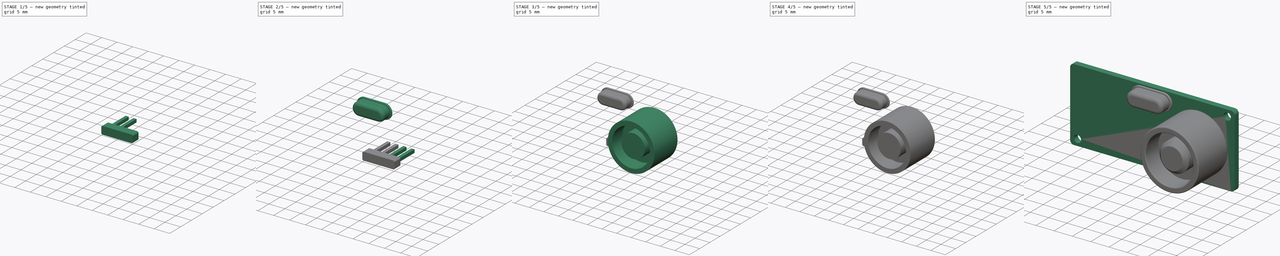
[diagram: build sequence overview — one tinted view per stage of 5, left to right]
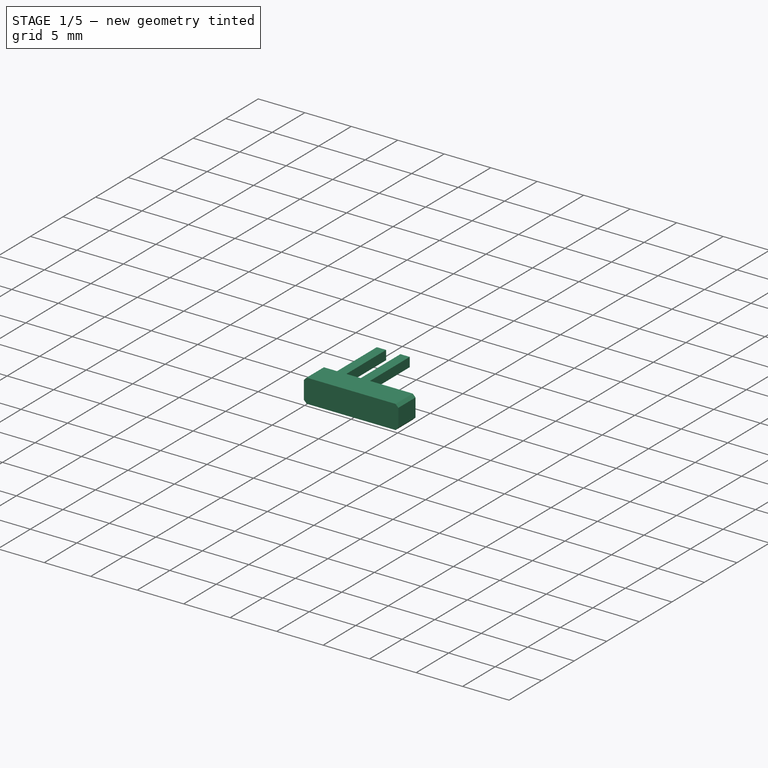
[diagram: stage 1 of 5 — iso view after this stage's code; geometry added in this stage tinted green]
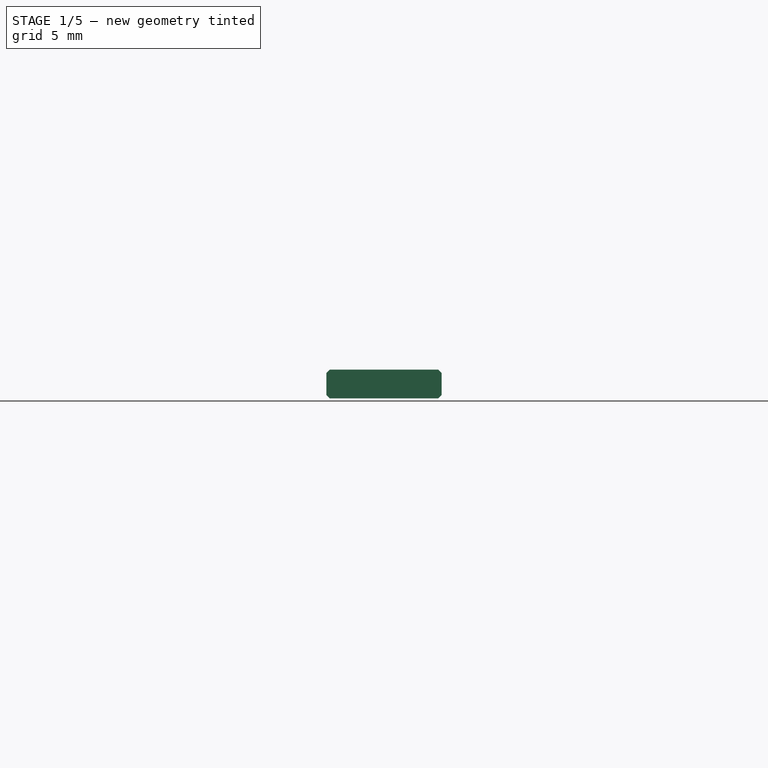
[diagram: stage 1 of 5 — front view after this stage's code; geometry added in this stage tinted green]
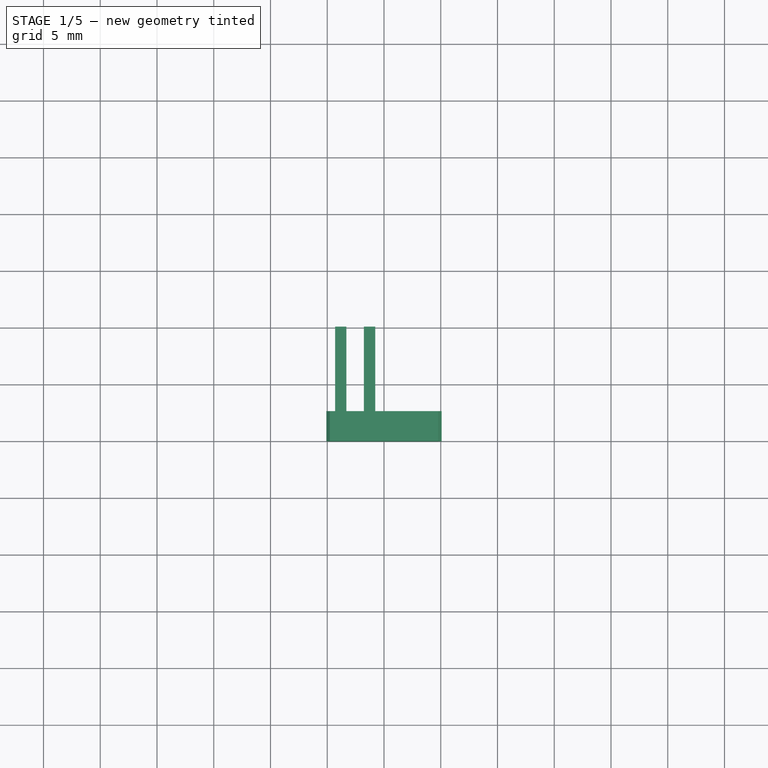
[diagram: stage 1 of 5 — top view after this stage's code; geometry added in this stage tinted green]
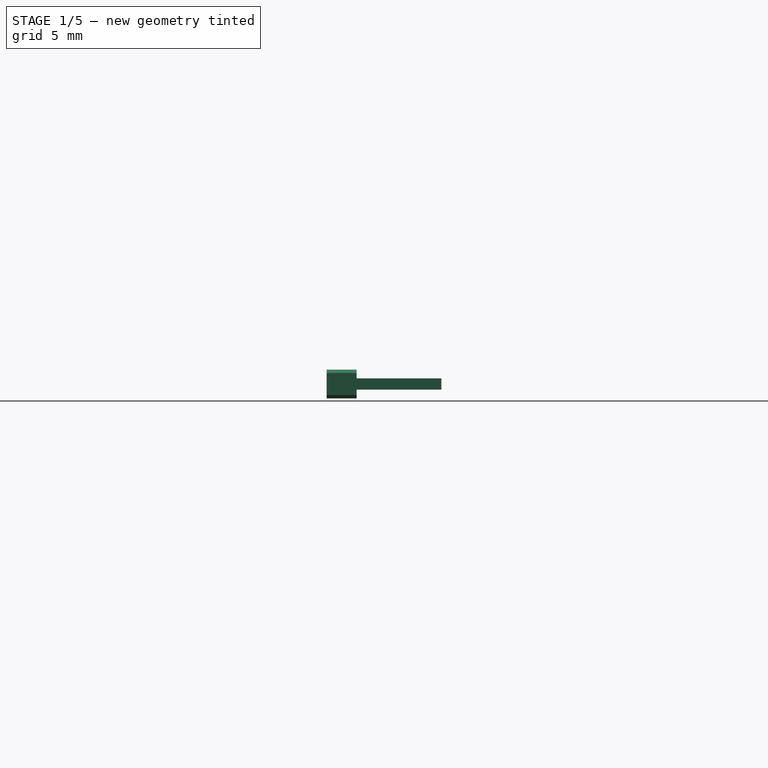
[diagram: stage 1 of 5 — right view after this stage's code; geometry added in this stage tinted green]
FCSTD DOCUMENT  (FreeCAD 1.0R39319 (Git))
Label: Sensor-HC_SR04
License: All rights reserved
LicenseURL: http://en.wikipedia.org/wiki/All_rights_reserved
objects: Sketcher::SketchObject×12, PartDesign::Pad×10, PartDesign::Fillet×7, PartDesign::Body×6, PartDesign::Chamfer×4, PartDesign::Pocket×2, PartDesign::Mirrored×1
note: 101 computed .brp shape members not serialized (recipe doc carries the construction recipe); baked Part::Feature solids carry a one-line shape summary decoded from their .brp

FEATURE [PartDesign::Body] Body003
  AllowCompound = false
  Group = -> [Sketch007,Pad005,Sketch008,Pad006,Fillet005,Fillet006]
  Origin = -> Origin003
  Tip = -> Fillet006
FEATURE [Sketcher::SketchObject] Sketch009
  ArcFitTolerance = 0
  FullyConstrained = true
  MakeInternals = false
  MapMode = 5
  Placement = pos=(0,0,0) rot=(0,0.707107,0.707107;3.14159rad)
  sketch-geometry (4):
    g0: LineSegment StartX=-5.08 StartY=-7 StartZ=0 EndX=5.08 EndY=-7 EndZ=0
    g1: LineSegment StartX=5.08 StartY=-7 StartZ=0 EndX=5.08 EndY=-9.54 EndZ=0
    g2: LineSegment StartX=5.08 StartY=-9.54 StartZ=0 EndX=-5.08 EndY=-9.54 EndZ=0
    g3: LineSegment StartX=-5.08 StartY=-9.54 StartZ=0 EndX=-5.08 EndY=-7 EndZ=0
  constraints (11):
    c: Coincident(g0,g1)
    c: Coincident(g1,g2)
    c: Coincident(g2,g3)
    c: Coincident(g3,g0)
    c: Horizontal(g0)
    c: Vertical(g1)
    c: Vertical(g3)
    c: Symmetric(g1,g2,g-2)
    c: DistanceY(g1,g1) = 2.54
    c: DistanceX(g2,g2) = 10.16
    c: DistanceY(g0,g-1) = 7
FEATURE [PartDesign::Pad] Pad007
  AllowMultiFace = false
  Direction = (1e-16,1,-7e-16)
  Length = 0.1
  Length2 = 100
  Placement = pos=(0,0,0) rot=(0,0.707107,0.707107;3.14159rad)
  Profile = -> Sketch009
  Suppressed = false
  Type = 0
FEATURE [PartDesign::Chamfer] Chamfer002
  Angle = 45
  Base = -> Pad007 [Edge2,Edge5,Edge1,Edge8]
  BaseFeature = -> Pad007
  ChamferType = 0
  FlipDirection = false
  Placement = pos=(0,0,0) rot=(0,0.707107,0.707107;3.14159rad)
  Refine = true
  Size = 0.3
  Size2 = 1
  SupportTransform = false
  Suppressed = false
  UseAllEdges = false
FEATURE [Sketcher::SketchObject] Sketch010
  ArcFitTolerance = 0
  AttachmentSupport = -> [Chamfer002]
  FullyConstrained = true
  MakeInternals = false
  MapMode = 5
  Placement = pos=(0,0.1,-1e-16) rot=(0,0.707107,0.707107;3.14159rad)
  sketch-geometry (8):
    g0: LineSegment StartX=0.77 StartY=-7.77 StartZ=0 EndX=1.77 EndY=-7.77 EndZ=0
    g1: LineSegment StartX=1.77 StartY=-7.77 StartZ=0 EndX=1.77 EndY=-8.77 EndZ=0
    g2: LineSegment StartX=1.77 StartY=-8.77 StartZ=0 EndX=0.77 EndY=-8.77 EndZ=0
    g3: LineSegment StartX=0.77 StartY=-8.77 StartZ=0 EndX=0.77 EndY=-7.77 EndZ=0
    g4: LineSegment StartX=3.31 StartY=-7.77 StartZ=0 EndX=4.31 EndY=-7.77 EndZ=0
    g5: LineSegment StartX=4.31 StartY=-7.77 StartZ=0 EndX=4.31 EndY=-8.77 EndZ=0
    g6: LineSegment StartX=4.31 StartY=-8.77 StartZ=0 EndX=3.31 EndY=-8.77 EndZ=0
    g7: LineSegment StartX=3.31 StartY=-8.77 StartZ=0 EndX=3.31 EndY=-7.77 EndZ=0
  constraints (24):
    c: Coincident(g0,g1)
    c: Coincident(g1,g2)
    c: Coincident(g2,g3)
    c: Coincident(g3,g0)
    c: Horizontal(g0)
    c: Horizontal(g2)
    c: Vertical(g1)
    c: Vertical(g3)
    c: Coincident(g4,g5)
    c: Coincident(g5,g6)
    c: Coincident(g6,g7)
    c: Coincident(g7,g4)
    c: Horizontal(g4)
    c: Horizontal(g6)
    c: Vertical(g5)
    c: Vertical(g7)
    c: Equal(g0,g1)
    c: Equal(g1,g4)
    c: Equal(g4,g5)
    c: Horizontal(g4,g0)
    c: DistanceX(g0,g4) = 2.54
    c: DistanceX(g-1,g0) = 1.77
    c: DistanceY(g5,g5) = 1
    c: DistanceY(g0,g-1) = 7.77
FEATURE [PartDesign::Pad] Pad008
  AllowMultiFace = false
  BaseFeature = -> Chamfer002
  Direction = (0,1,-2e-16)
  Length = 10
  Length2 = 100
  Placement = pos=(0,0,0) rot=(0,0.707107,0.707107;3.14159rad)
  Profile = -> Sketch010
  Suppressed = false
  Type = 0
FEATURE [PartDesign::Body] Body004
  AllowCompound = false
  Group = -> [Sketch009,Pad007,Chamfer002,Sketch010,Pad008,Mirrored]
  Origin = -> Origin004
  Tip = -> Mirrored
FEATURE [Sketcher::SketchObject] Sketch011
  ArcFitTolerance = 0
  FullyConstrained = true
  MakeInternals = false
  MapMode = 5
  Placement = pos=(0,0.1,-1e-16) rot=(0,0.707107,0.707107;3.14159rad)
  sketch-geometry (4):
    g0: LineSegment StartX=-5.08 StartY=-7 StartZ=0 EndX=5.08 EndY=-7 EndZ=0
    g1: LineSegment StartX=5.08 StartY=-7 StartZ=0 EndX=5.08 EndY=-9.54 EndZ=0
    g2: LineSegment StartX=5.08 StartY=-9.54 StartZ=0 EndX=-5.08 EndY=-9.54 EndZ=0
    g3: LineSegment StartX=-5.08 StartY=-9.54 StartZ=0 EndX=-5.08 EndY=-7 EndZ=0
  constraints (11):
    c: Coincident(g0,g1)
    c: Coincident(g1,g2)
    c: Coincident(g2,g3)
    c: Coincident(g3,g0)
    c: Horizontal(g2)
    c: Vertical(g1)
    c: Vertical(g3)
    c: Symmetric(g0,g0,g-2)
    c: DistanceX(g0,g0) = 10.16
    c: DistanceY(g1,g1) = 2.54
    c: DistanceY(g0,g-1) = 7
FEATURE [PartDesign::Pad] Pad009
  AllowMultiFace = false
  Direction = (-4e-16,1,-7e-16)
  Length = 2.54
  Length2 = 100
  Placement = pos=(0,0.1,-1e-16) rot=(0,0.707107,0.707107;3.14159rad)
  Profile = -> Sketch011
  Suppressed = false
  Type = 0
FEATURE [PartDesign::Chamfer] Chamfer003
  Angle = 45
  Base = -> Pad009 [Edge5,Edge2,Edge1,Edge8]
  BaseFeature = -> Pad009
  ChamferType = 0
  FlipDirection = false
  Placement = pos=(0,0.1,-1e-16) rot=(0,0.707107,0.707107;3.14159rad)
  Refine = true
  Size = 0.3
  Size2 = 1
  SupportTransform = false
  Suppressed = false
  UseAllEdges = false
FEATURE [PartDesign::Body] Body005
  AllowCompound = false
  Group = -> [Sketch011,Pad009,Chamfer003]
  Origin = -> Origin005
  Tip = -> Chamfer003
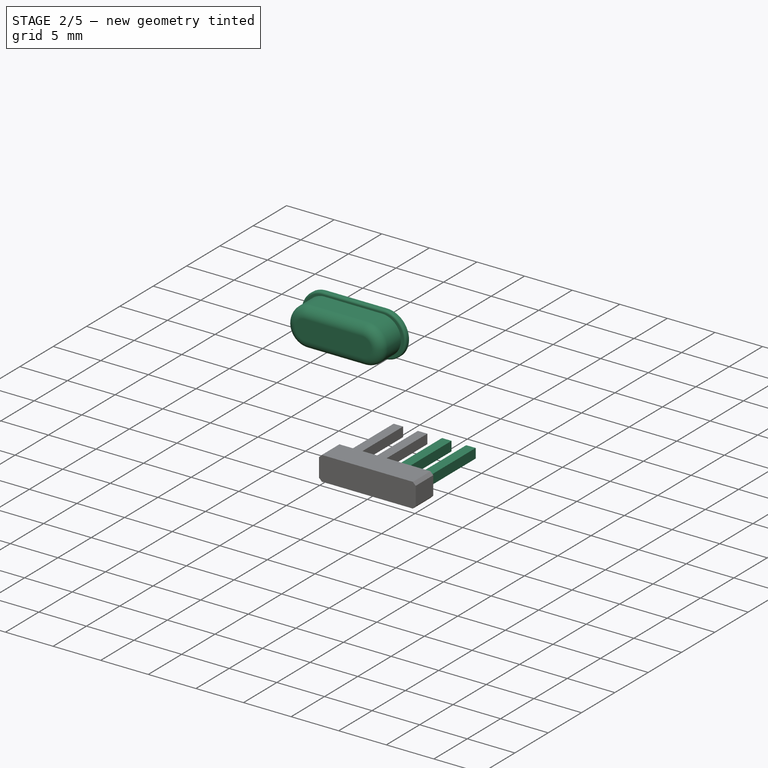
[diagram: stage 2 of 5 — iso view after this stage's code; geometry added in this stage tinted green]
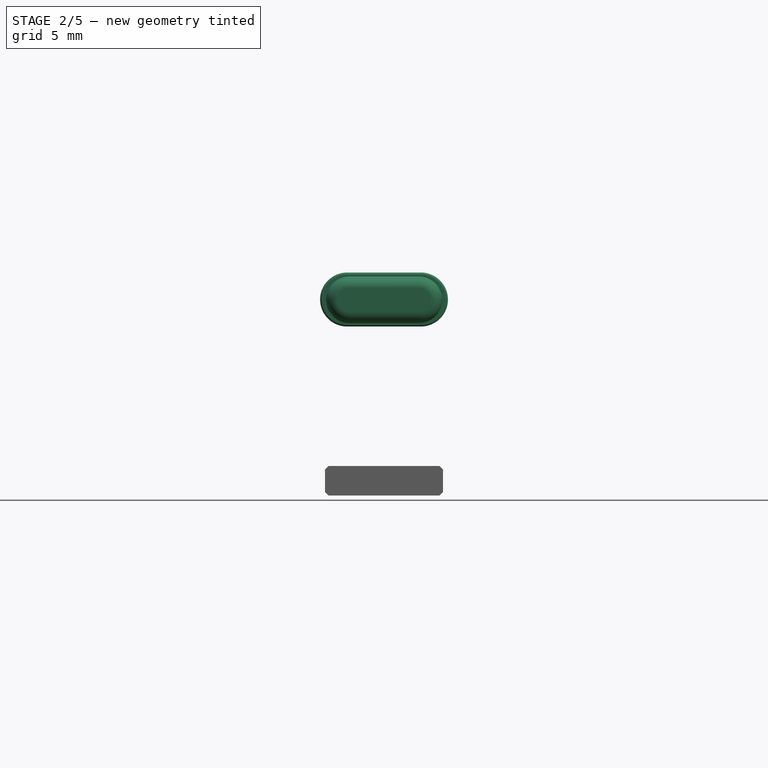
[diagram: stage 2 of 5 — front view after this stage's code; geometry added in this stage tinted green]
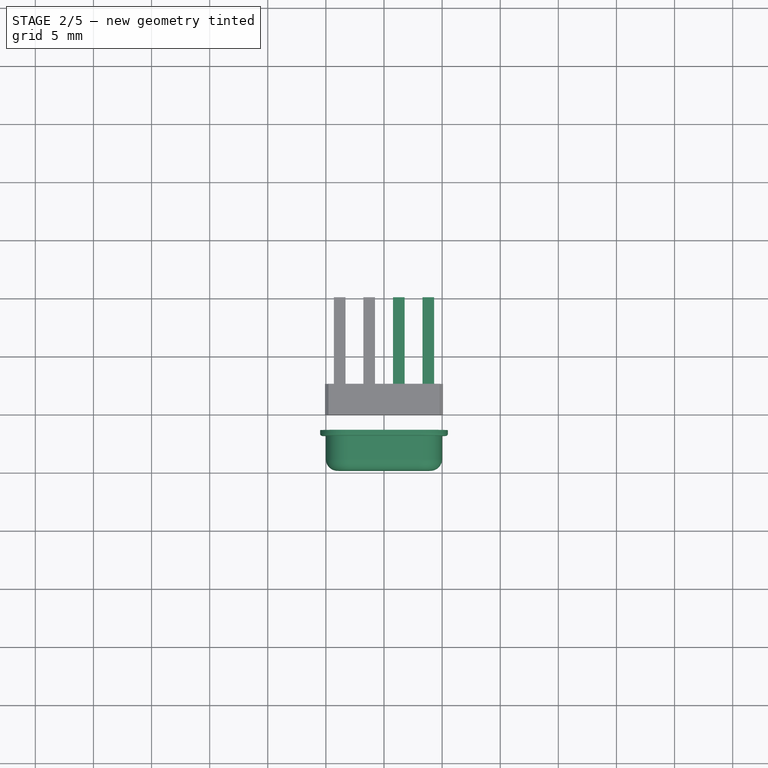
[diagram: stage 2 of 5 — top view after this stage's code; geometry added in this stage tinted green]
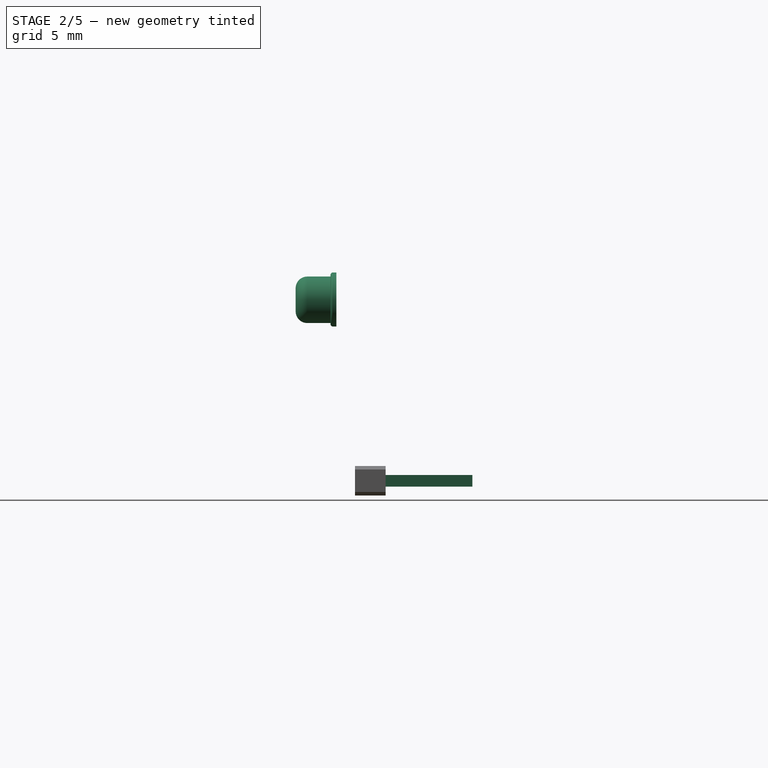
[diagram: stage 2 of 5 — right view after this stage's code; geometry added in this stage tinted green]
FEATURE [PartDesign::Body] Body002
  AllowCompound = false
  Group = -> [Sketch004,Pad003,Sketch006,Pocket001,Sketch005,Pad004,Fillet003,Fillet004,Chamfer001]
  Origin = -> Origin002
  Placement = pos=(-26,0,0) rot=(0,0,1;0rad)
  Tip = -> Chamfer001
FEATURE [Sketcher::SketchObject] Sketch007
  ArcFitTolerance = 0
  FullyConstrained = true
  MakeInternals = false
  MapMode = 5
  Placement = pos=(0,-1.6,1.1e-15) rot=(1,0,0;1.5708rad)
  sketch-geometry (4):
    g0: ArcOfCircle CenterX=-3.175 CenterY=7.325 CenterZ=0 NormalX=0 NormalY=0 NormalZ=1 AngleXU=0 Radius=2.325 StartAngle=1.5708 EndAngle=4.71239
    g1: ArcOfCircle CenterX=3.175 CenterY=7.325 CenterZ=0 NormalX=0 NormalY=0 NormalZ=1 AngleXU=0 Radius=2.325 StartAngle=4.71239 EndAngle=7.85398
    g2: LineSegment StartX=-3.175 StartY=5 StartZ=0 EndX=3.175 EndY=5 EndZ=0
    g3: LineSegment StartX=-3.175 StartY=9.65 StartZ=0 EndX=3.175 EndY=9.65 EndZ=0
  constraints (9):
    c: Tangent(g0,g3) = 1.5708
    c: Tangent(g0,g2) = -1.5708
    c: Tangent(g2,g1) = -1.5708
    c: Tangent(g3,g1) = 1.5708
    c: Equal(g0,g1)
    c: Diameter(g1) = 4.65
    c: DistanceX(g3,g3) = 6.35
    c: Symmetric(g0,g1,g-2)
    c: DistanceY(g-1,g1) = 5
FEATURE [PartDesign::Pad] Pad005
  AllowMultiFace = false
  Direction = (0,-1,7e-16)
  Length = 0.5
  Length2 = 100
  Placement = pos=(0,-1.6,1.1e-15) rot=(1,0,0;1.5708rad)
  Profile = -> Sketch007
  Suppressed = false
  Type = 0
FEATURE [Sketcher::SketchObject] Sketch008
  ArcFitTolerance = 0
  AttachmentSupport = -> [Pad005]
  FullyConstrained = true
  MakeInternals = false
  MapMode = 5
  Placement = pos=(0,-2.1,1.5e-15) rot=(1,0,0;1.5708rad)
  sketch-geometry (4):
    g0: ArcOfCircle CenterX=-3 CenterY=7.3 CenterZ=0 NormalX=0 NormalY=0 NormalZ=1 AngleXU=0 Radius=2 StartAngle=1.5708 EndAngle=4.71239
    g1: ArcOfCircle CenterX=3 CenterY=7.3 CenterZ=0 NormalX=0 NormalY=0 NormalZ=1 AngleXU=0 Radius=2 StartAngle=4.71239 EndAngle=7.85398
    g2: LineSegment StartX=-3 StartY=5.3 StartZ=0 EndX=3 EndY=5.3 EndZ=0
    g3: LineSegment StartX=-3 StartY=9.3 StartZ=0 EndX=3 EndY=9.3 EndZ=0
  constraints (9):
    c: Tangent(g0,g3) = 1.5708
    c: Tangent(g0,g2) = -1.5708
    c: Tangent(g2,g1) = -1.5708
    c: Tangent(g3,g1) = 1.5708
    c: Equal(g0,g1)
    c: Diameter(g1) = 4
    c: DistanceY(g-1,g1) = 5.3
    c: Symmetric(g1,g0,g-2)
    c: DistanceX(g3,g3) = 6
FEATURE [PartDesign::Pad] Pad006
  AllowMultiFace = false
  BaseFeature = -> Pad005
  Direction = (0,-1,2e-16)
  Length = 3
  Length2 = 100
  Placement = pos=(0,-1.6,1.1e-15) rot=(1,0,0;1.5708rad)
  Profile = -> Sketch008
  Suppressed = false
  Type = 0
FEATURE [PartDesign::Fillet] Fillet005
  Base = -> Pad006 [Edge7,Edge12,Edge4,Edge10]
  BaseFeature = -> Pad006
  Placement = pos=(0,-1.6,1.1e-15) rot=(1,0,0;1.5708rad)
  Radius = 0.2
  Refine = true
  SupportTransform = false
  Suppressed = false
  UseAllEdges = false
FEATURE [PartDesign::Fillet] Fillet006
  Base = -> Fillet005 [Edge29,Edge31,Edge32,Edge27]
  BaseFeature = -> Fillet005
  Placement = pos=(0,-1.6,1.1e-15) rot=(1,0,0;1.5708rad)
  Radius = 1
  Refine = true
  SupportTransform = false
  Suppressed = false
  UseAllEdges = false
FEATURE [PartDesign::Mirrored] Mirrored
  BaseFeature = -> Pad008
  MirrorPlane = -> YZ_Plane004
  Originals = -> [Pad008]
  Placement = pos=(0,0,0) rot=(0,0.707107,0.707107;3.14159rad)
  Suppressed = false
  TransformMode = 0
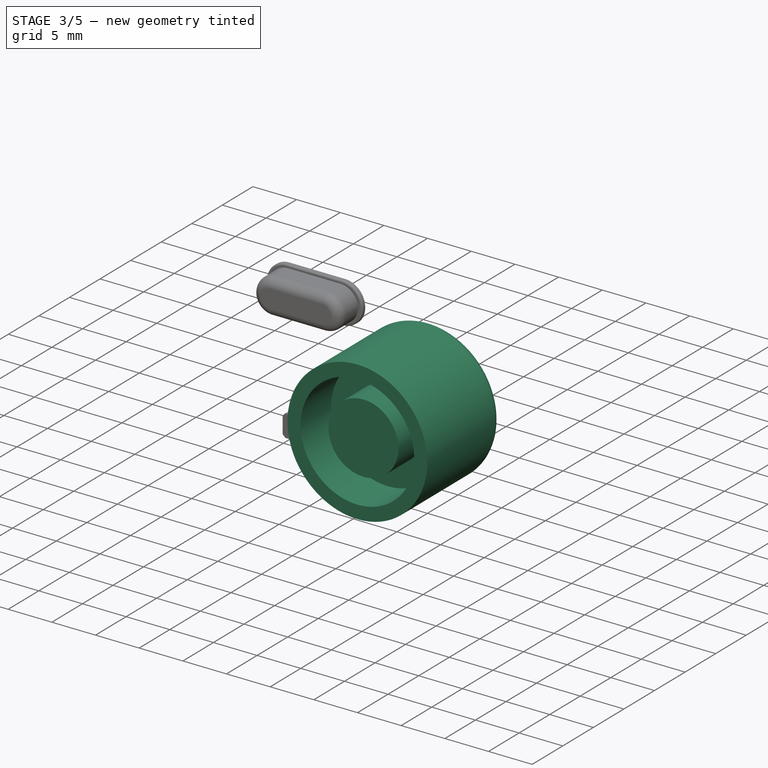
[diagram: stage 3 of 5 — iso view after this stage's code; geometry added in this stage tinted green]
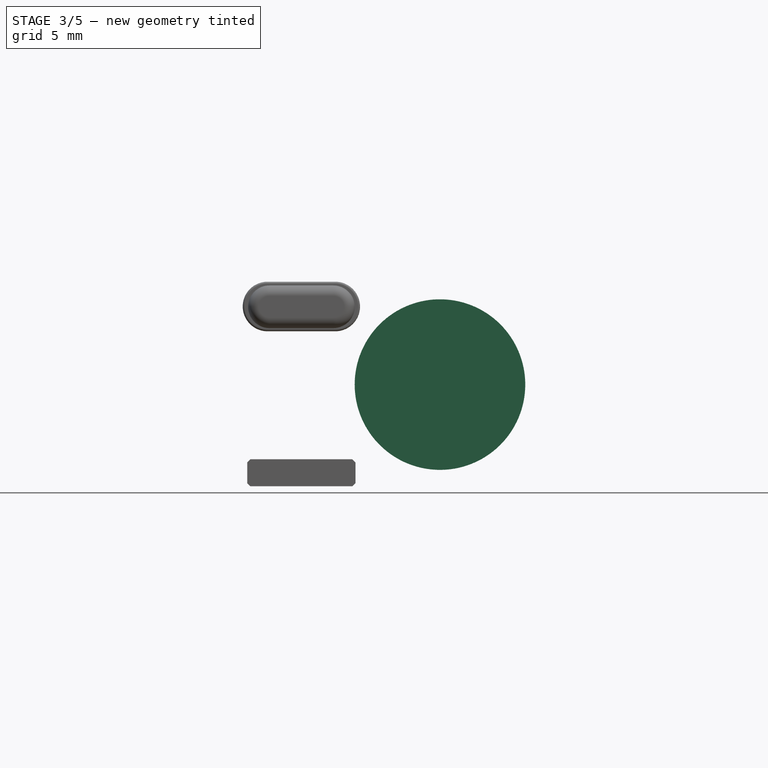
[diagram: stage 3 of 5 — front view after this stage's code; geometry added in this stage tinted green]
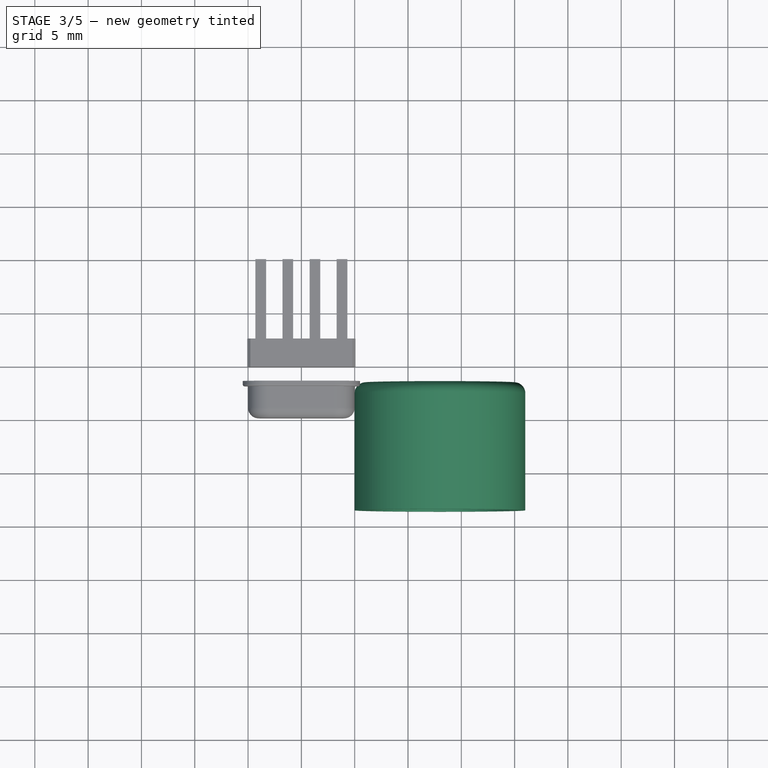
[diagram: stage 3 of 5 — top view after this stage's code; geometry added in this stage tinted green]
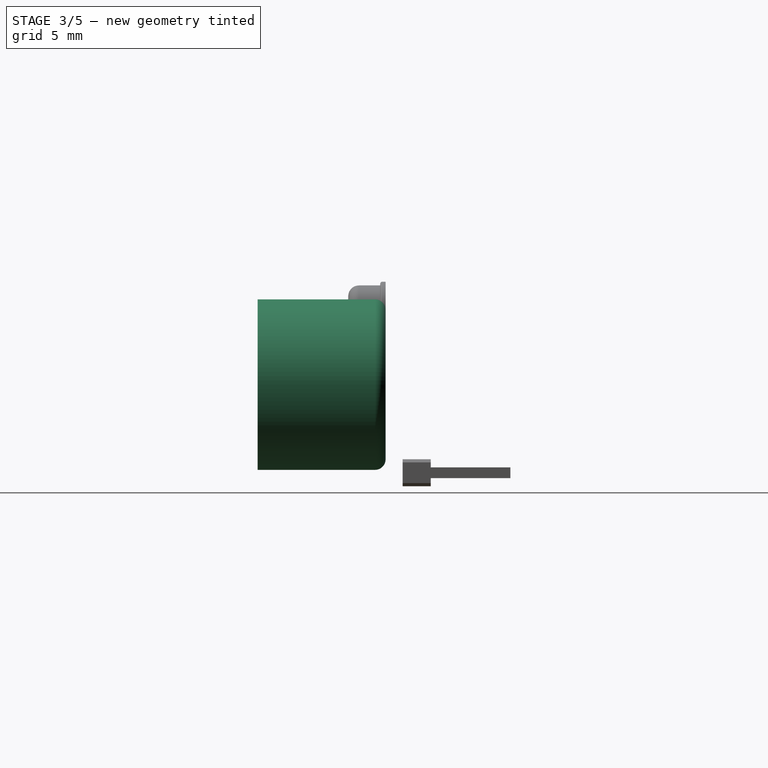
[diagram: stage 3 of 5 — right view after this stage's code; geometry added in this stage tinted green]
FEATURE [PartDesign::Body] Body001
  AllowCompound = false
  Group = -> [Sketch001,Pad001,Sketch002,Pocket,Sketch003,Pad002,Fillet001,Fillet002,Chamfer]
  Origin = -> Origin001
  Tip = -> Chamfer
FEATURE [Sketcher::SketchObject] Sketch004
  ArcFitTolerance = 0
  FullyConstrained = true
  MakeInternals = false
  MapMode = 5
  Placement = pos=(0,-1.6,1e-15) rot=(1,0,0;1.5708rad)
  sketch-geometry (1):
    g0: Circle CenterX=13 CenterY=0 CenterZ=0 NormalX=0 NormalY=0 NormalZ=1 AngleXU=0 Radius=8
  constraints (3):
    c: PointOnObject(g0,g-1)
    c: DistanceX(g-1,g0) = 13
    c: Diameter(g0) = 16
FEATURE [PartDesign::Pad] Pad003
  AllowMultiFace = false
  Direction = (0,-1,1.1e-15)
  Length = 12
  Length2 = 100
  Placement = pos=(0,-1.6,1e-15) rot=(1,0,0;1.5708rad)
  Profile = -> Sketch004
  Suppressed = false
  Type = 0
FEATURE [Sketcher::SketchObject] Sketch006
  ArcFitTolerance = 0
  AttachmentSupport = -> [Pad003]
  FullyConstrained = true
  MakeInternals = false
  MapMode = 5
  Placement = pos=(0,-13.6,1.31e-14) rot=(1,0,0;1.5708rad)
  sketch-geometry (1):
    g0: Circle CenterX=13 CenterY=0 CenterZ=0 NormalX=0 NormalY=0 NormalZ=1 AngleXU=0 Radius=6.5
  constraints (3):
    c: PointOnObject(g0,g-1)
    c: DistanceX(g0) = 13
    c: Diameter(g0) = 13
FEATURE [PartDesign::Pocket] Pocket001
  AllowMultiFace = false
  BaseFeature = -> Pad003
  Direction = (0,1,-1.1e-15)
  Length = 5
  Length2 = 100
  Placement = pos=(0,-1.6,1e-15) rot=(1,0,0;1.5708rad)
  Profile = -> Sketch006
  Suppressed = false
  Type = 0
FEATURE [Sketcher::SketchObject] Sketch005
  ArcFitTolerance = 0
  AttachmentSupport = -> [Pocket001]
  FullyConstrained = true
  MakeInternals = false
  MapMode = 5
  Placement = pos=(0,-8.6,9.1e-15) rot=(1,0,0;1.5708rad)
  sketch-geometry (1):
    g0: Circle CenterX=13 CenterY=0 CenterZ=0 NormalX=0 NormalY=0 NormalZ=1 AngleXU=0 Radius=4
  constraints (3):
    c: PointOnObject(g0,g-1)
    c: DistanceX(g0) = 13
    c: Diameter(g0) = 8
FEATURE [PartDesign::Pad] Pad004
  AllowMultiFace = false
  BaseFeature = -> Pocket001
  Direction = (0,-1,1.1e-15)
  Length = 4
  Length2 = 100
  Placement = pos=(0,-1.6,1e-15) rot=(1,0,0;1.5708rad)
  Profile = -> Sketch005
  Suppressed = false
  Type = 0
FEATURE [PartDesign::Fillet] Fillet003
  Base = -> Pad004 [Edge2]
  BaseFeature = -> Pad004
  Placement = pos=(0,-1.6,1e-15) rot=(1,0,0;1.5708rad)
  Radius = 1
  Refine = true
  SupportTransform = false
  Suppressed = false
  UseAllEdges = false
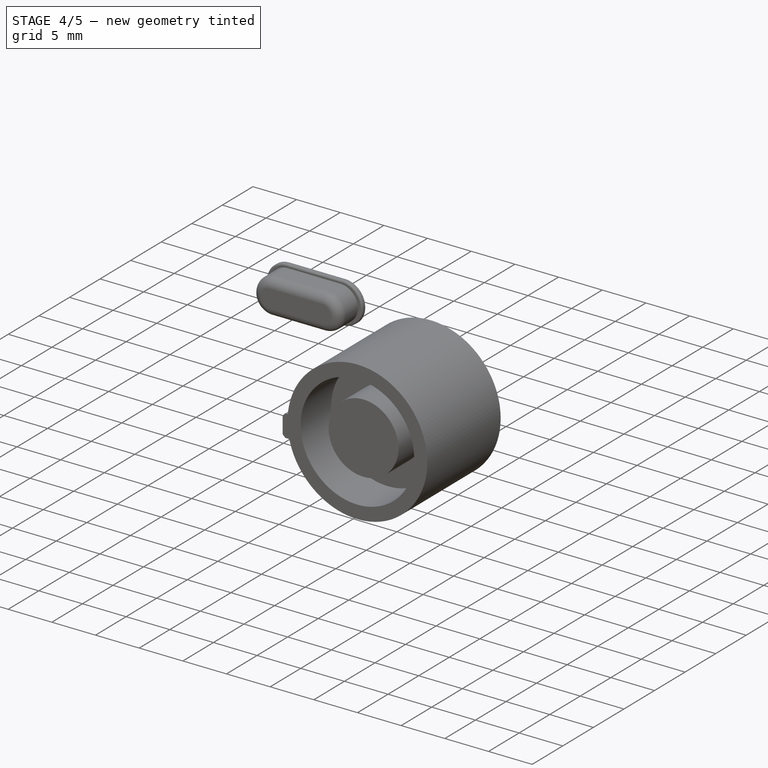
[diagram: stage 4 of 5 — iso view after this stage's code; geometry added in this stage tinted green]
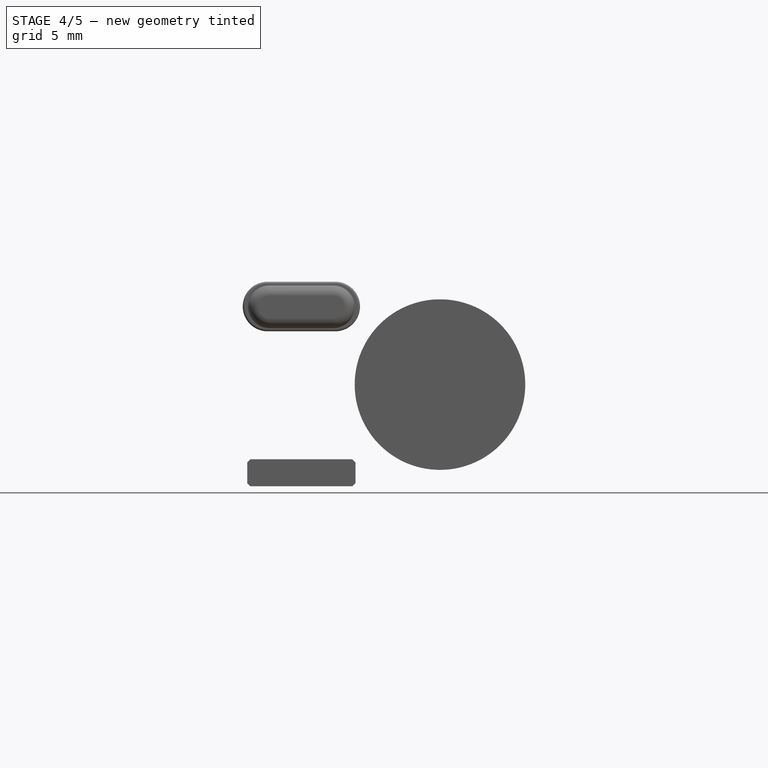
[diagram: stage 4 of 5 — front view after this stage's code; geometry added in this stage tinted green]
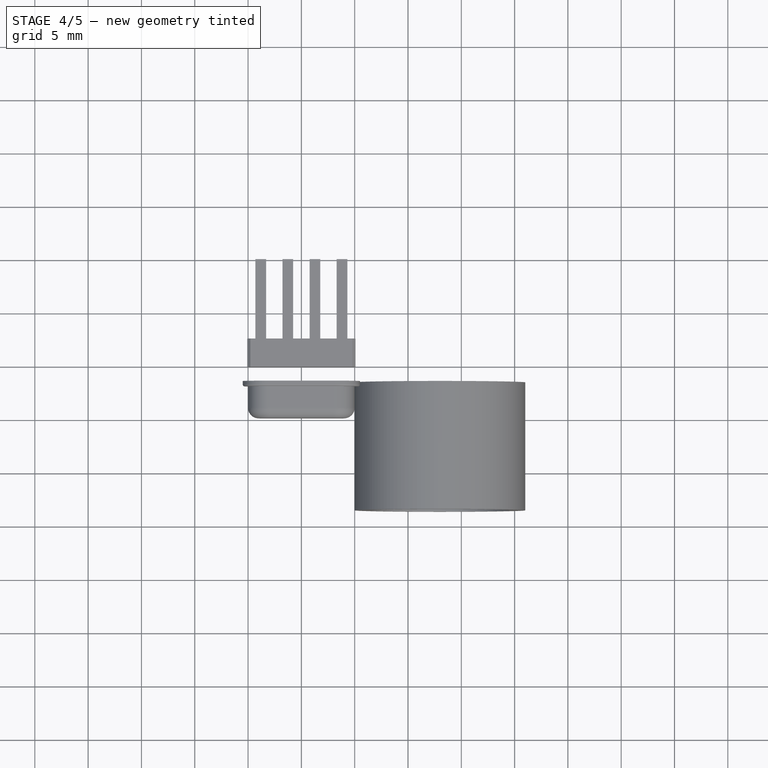
[diagram: stage 4 of 5 — top view after this stage's code; geometry added in this stage tinted green]
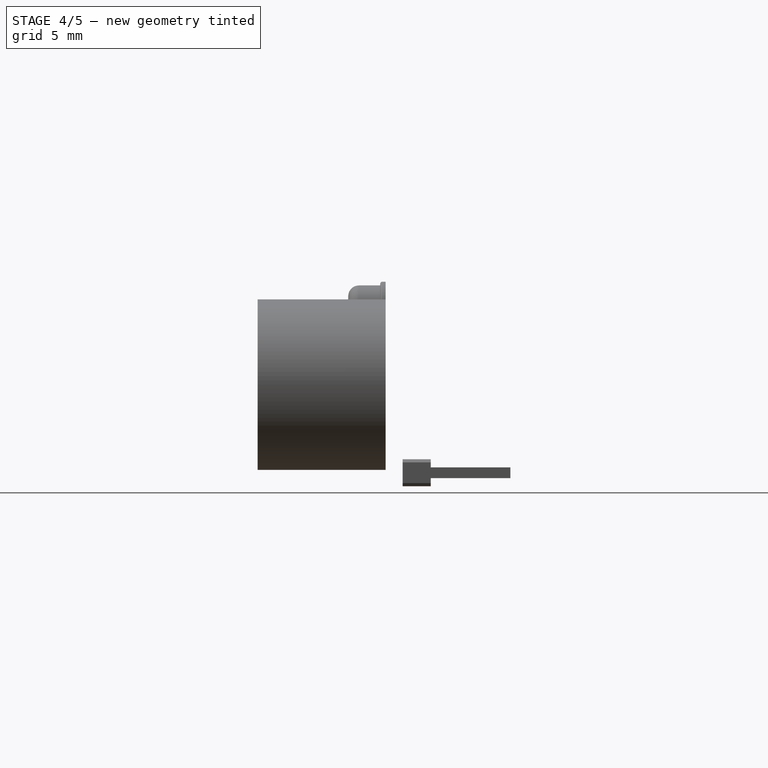
[diagram: stage 4 of 5 — right view after this stage's code; geometry added in this stage tinted green]
FEATURE [PartDesign::Body] Body
  AllowCompound = false
  Group = -> [Sketch,Pad,Fillet]
  Origin = -> Origin
  Tip = -> Fillet
FEATURE [Sketcher::SketchObject] Sketch001
  ArcFitTolerance = 0
  FullyConstrained = true
  MakeInternals = false
  MapMode = 5
  Placement = pos=(0,-1.6,1.1e-15) rot=(1,0,0;1.5708rad)
  sketch-geometry (1):
    g0: Circle CenterX=13 CenterY=0 CenterZ=0 NormalX=0 NormalY=0 NormalZ=1 AngleXU=0 Radius=8
  constraints (3):
    c: PointOnObject(g0,g-1)
    c: DistanceX(g-1,g0) = 13
    c: Diameter(g0) = 16
FEATURE [PartDesign::Pad] Pad001
  AllowMultiFace = false
  Direction = (0,-1,7e-16)
  Length = 12
  Length2 = 100
  Placement = pos=(0,-1.6,1.1e-15) rot=(1,0,0;1.5708rad)
  Profile = -> Sketch001
  Suppressed = false
  Type = 0
FEATURE [Sketcher::SketchObject] Sketch002
  ArcFitTolerance = 0
  AttachmentSupport = -> [Pad001]
  FullyConstrained = true
  MakeInternals = false
  MapMode = 5
  Placement = pos=(0,-13.6,1.03e-14) rot=(1,0,0;1.5708rad)
  sketch-geometry (1):
    g0: Circle CenterX=13 CenterY=0 CenterZ=0 NormalX=0 NormalY=0 NormalZ=1 AngleXU=0 Radius=6.5
  constraints (3):
    c: PointOnObject(g0,g-1)
    c: DistanceX(g0) = 13
    c: Diameter(g0) = 13
FEATURE [PartDesign::Pocket] Pocket
  AllowMultiFace = false
  BaseFeature = -> Pad001
  Direction = (0,1,-2e-16)
  Length = 5
  Length2 = 100
  Placement = pos=(0,-1.6,1.1e-15) rot=(1,0,0;1.5708rad)
  Profile = -> Sketch002
  Suppressed = false
  Type = 0
FEATURE [Sketcher::SketchObject] Sketch003
  ArcFitTolerance = 0
  AttachmentSupport = -> [Pocket]
  FullyConstrained = true
  MakeInternals = false
  MapMode = 5
  Placement = pos=(0,-8.6,3.3e-15) rot=(1,0,0;1.5708rad)
  sketch-geometry (1):
    g0: Circle CenterX=13 CenterY=0 CenterZ=0 NormalX=0 NormalY=0 NormalZ=1 AngleXU=0 Radius=4
  constraints (3):
    c: PointOnObject(g0,g-1)
    c: DistanceX(g0) = 13
    c: Diameter(g0) = 8
FEATURE [PartDesign::Pad] Pad002
  AllowMultiFace = false
  BaseFeature = -> Pocket
  Direction = (0,-1,2e-16)
  Length = 4
  Length2 = 100
  Placement = pos=(0,-1.6,1.1e-15) rot=(1,0,0;1.5708rad)
  Profile = -> Sketch003
  Suppressed = false
  Type = 0
FEATURE [PartDesign::Fillet] Fillet004
  Base = -> Fillet003 [Edge3,Edge6]
  BaseFeature = -> Fillet003
  Placement = pos=(0,-1.6,1e-15) rot=(1,0,0;1.5708rad)
  Radius = 0.3
  Refine = true
  SupportTransform = false
  Suppressed = false
  UseAllEdges = false
FEATURE [PartDesign::Chamfer] Chamfer001
  Angle = 45
  Base = -> Fillet004 [Edge15]
  BaseFeature = -> Fillet004
  ChamferType = 0
  FlipDirection = false
  Placement = pos=(0,-1.6,1e-15) rot=(1,0,0;1.5708rad)
  Refine = true
  Size = 1
  Size2 = 1
  SupportTransform = false
  Suppressed = false
  UseAllEdges = false
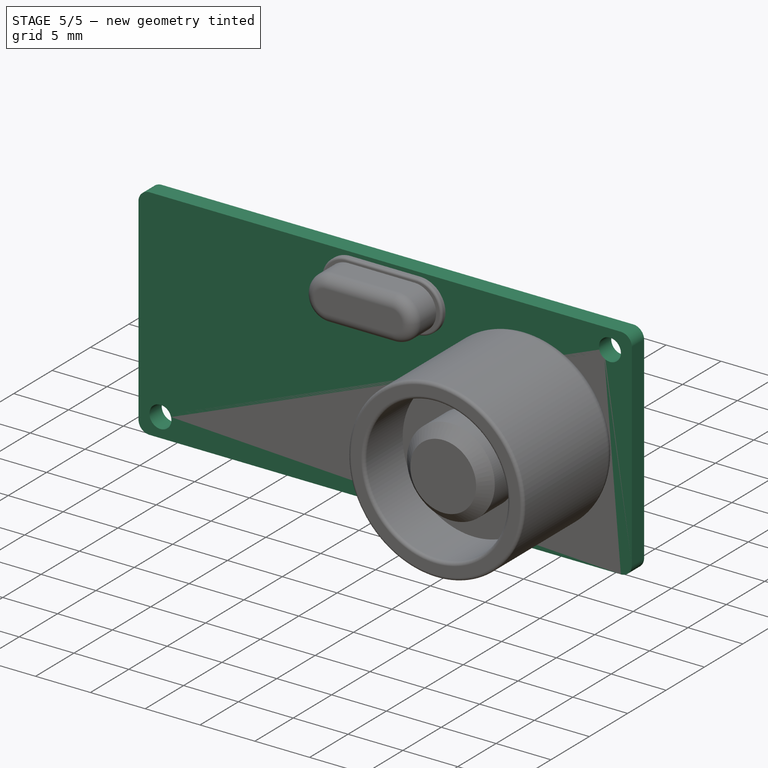
[diagram: stage 5 of 5 — iso view after this stage's code; geometry added in this stage tinted green]
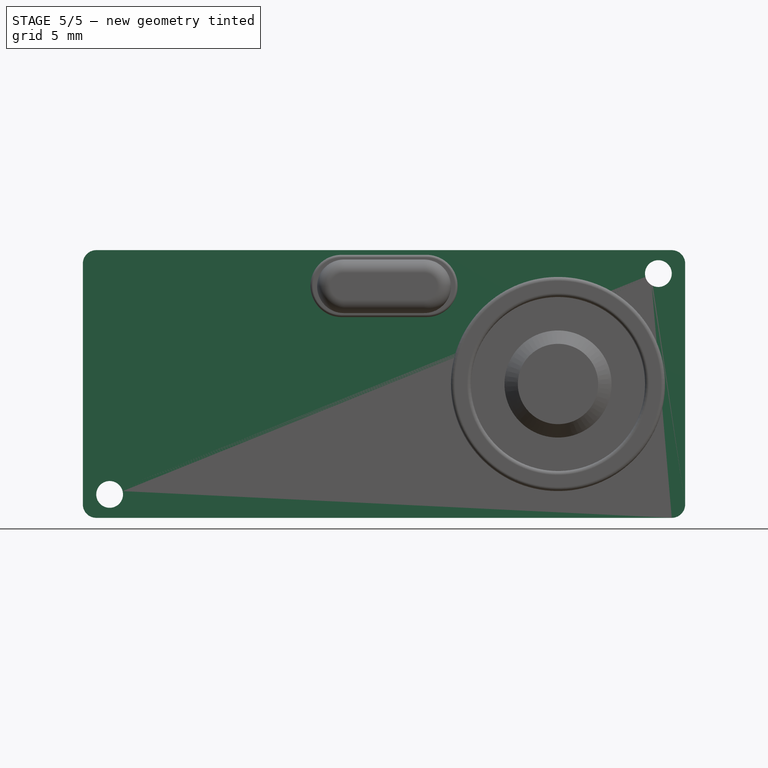
[diagram: stage 5 of 5 — front view after this stage's code; geometry added in this stage tinted green]
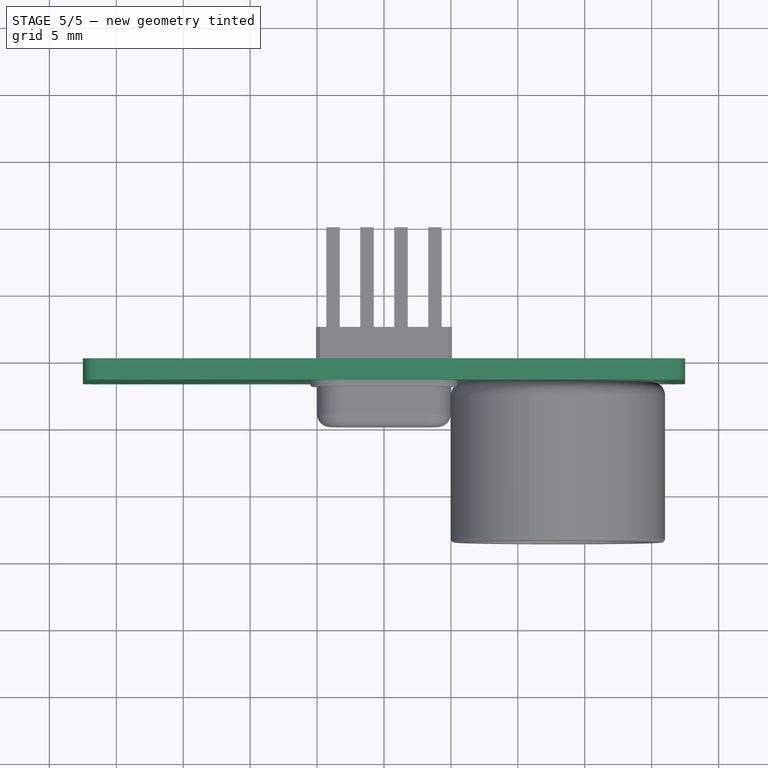
[diagram: stage 5 of 5 — top view after this stage's code; geometry added in this stage tinted green]
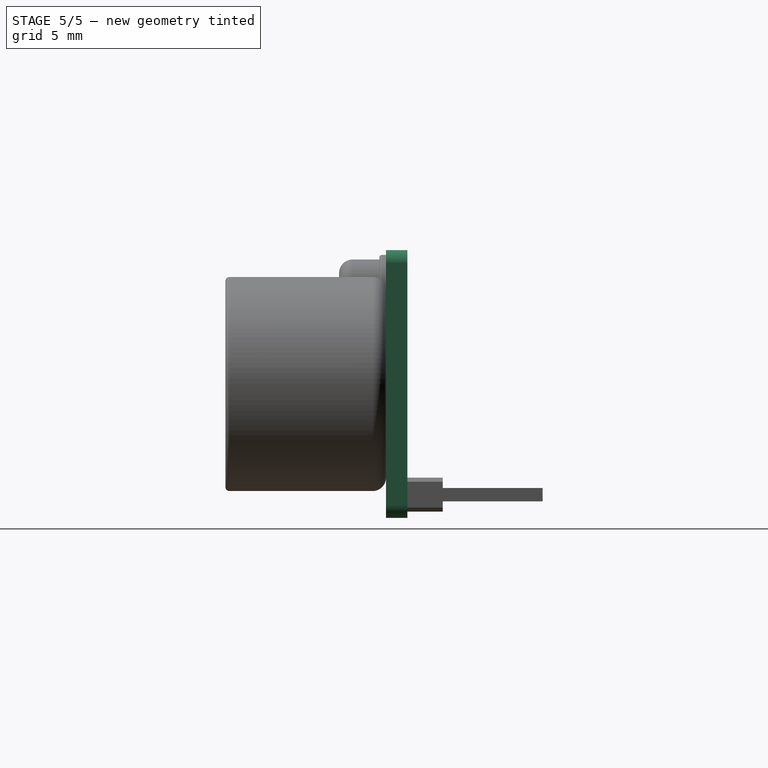
[diagram: stage 5 of 5 — right view after this stage's code; geometry added in this stage tinted green]
FEATURE [Sketcher::SketchObject] Sketch
  ArcFitTolerance = 0
  AttachmentSupport = -> [XZ_Plane]
  FullyConstrained = true
  MakeInternals = false
  MapMode = 5
  Placement = pos=(0,0,0) rot=(1,0,0;1.5708rad)
  sketch-geometry (6):
    g0: LineSegment StartX=-22.5 StartY=10 StartZ=0 EndX=22.5 EndY=10 EndZ=0
    g1: LineSegment StartX=22.5 StartY=10 StartZ=0 EndX=22.5 EndY=-10 EndZ=0
    g2: LineSegment StartX=22.5 StartY=-10 StartZ=0 EndX=-22.5 EndY=-10 EndZ=0
    g3: LineSegment StartX=-22.5 StartY=-10 StartZ=0 EndX=-22.5 EndY=10 EndZ=0
    g4: Circle CenterX=20.5 CenterY=8.25 CenterZ=0 NormalX=0 NormalY=0 NormalZ=1 AngleXU=0 Radius=1
    g5: Circle CenterX=-20.5 CenterY=-8.25 CenterZ=0 NormalX=0 NormalY=0 NormalZ=1 AngleXU=0 Radius=1
  constraints (16):
    c: Coincident(g0,g1)
    c: Coincident(g1,g2)
    c: Coincident(g2,g3)
    c: Coincident(g3,g0)
    c: Horizontal(g0)
    c: Horizontal(g2)
    c: Vertical(g1)
    c: Vertical(g3)
    c: Symmetric(g0,g1,g-1)
    c: DistanceY(g1,g1) = 20
    c: DistanceX(g0,g0) = 45
    c: Equal(g5,g4)
    c: Diameter(g4) = 2
    c: DistanceX(g5,g4) = 41
    c: DistanceY(g5,g4) = 16.5
    c: Symmetric(g4,g5,g-1)
FEATURE [PartDesign::Pad] Pad
  AllowMultiFace = false
  Direction = (0,-1,2e-16)
  Length = 1.6
  Length2 = 100
  Placement = pos=(0,0,0) rot=(1,0,0;1.5708rad)
  Profile = -> Sketch
  Suppressed = false
  Type = 0
FEATURE [PartDesign::Fillet] Fillet
  Base = -> Pad [Edge2,Edge1,Edge8,Edge5]
  BaseFeature = -> Pad
  Placement = pos=(0,0,0) rot=(1,0,0;1.5708rad)
  Radius = 1
  Refine = true
  SupportTransform = false
  Suppressed = false
  UseAllEdges = false
FEATURE [PartDesign::Fillet] Fillet001
  Base = -> Pad002 [Edge2]
  BaseFeature = -> Pad002
  Placement = pos=(0,-1.6,1.1e-15) rot=(1,0,0;1.5708rad)
  Radius = 1
  Refine = true
  SupportTransform = false
  Suppressed = false
  UseAllEdges = false
FEATURE [PartDesign::Fillet] Fillet002
  Base = -> Fillet001 [Edge3,Edge6]
  BaseFeature = -> Fillet001
  Placement = pos=(0,-1.6,1.1e-15) rot=(1,0,0;1.5708rad)
  Radius = 0.3
  Refine = true
  SupportTransform = false
  Suppressed = false
  UseAllEdges = false
FEATURE [PartDesign::Chamfer] Chamfer
  Angle = 45
  Base = -> Fillet002 [Edge15]
  BaseFeature = -> Fillet002
  ChamferType = 0
  FlipDirection = false
  Placement = pos=(0,-1.6,1.1e-15) rot=(1,0,0;1.5708rad)
  Refine = true
  Size = 1
  Size2 = 1
  SupportTransform = false
  Suppressed = false
  UseAllEdges = false
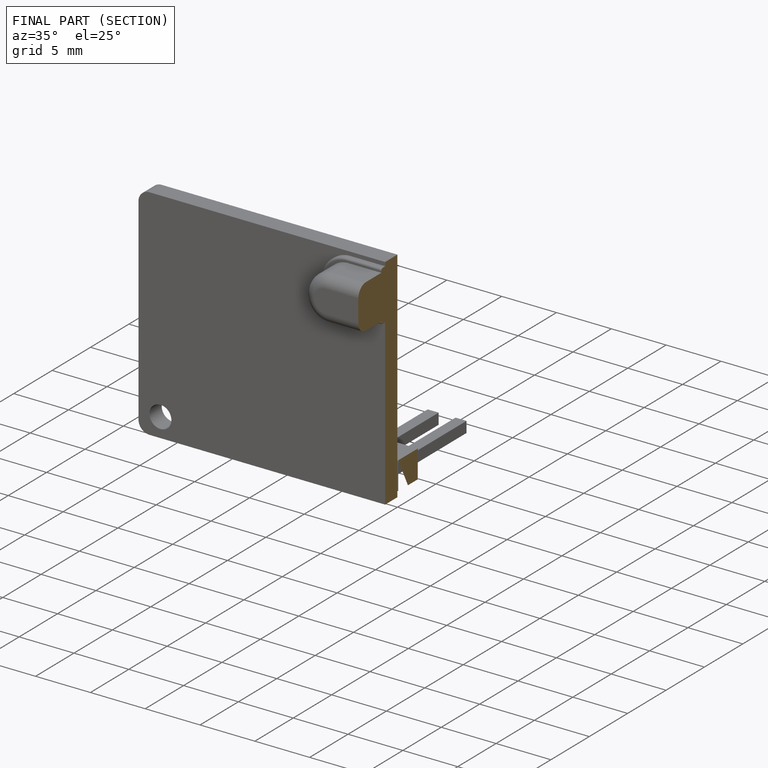
[diagram: finished part — half-section view (interior)]
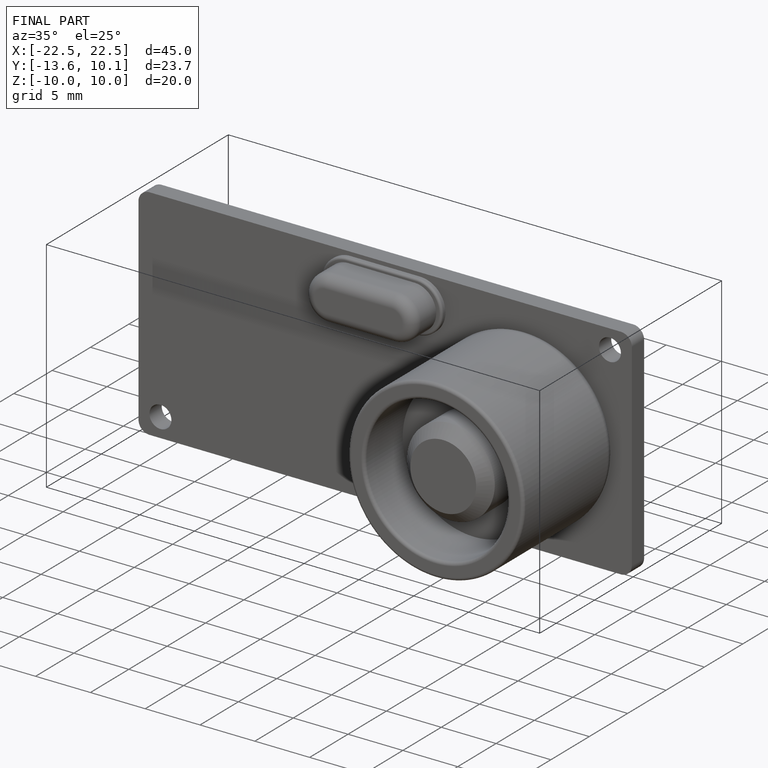
[diagram: finished part — iso view with bounding-box wireframe]
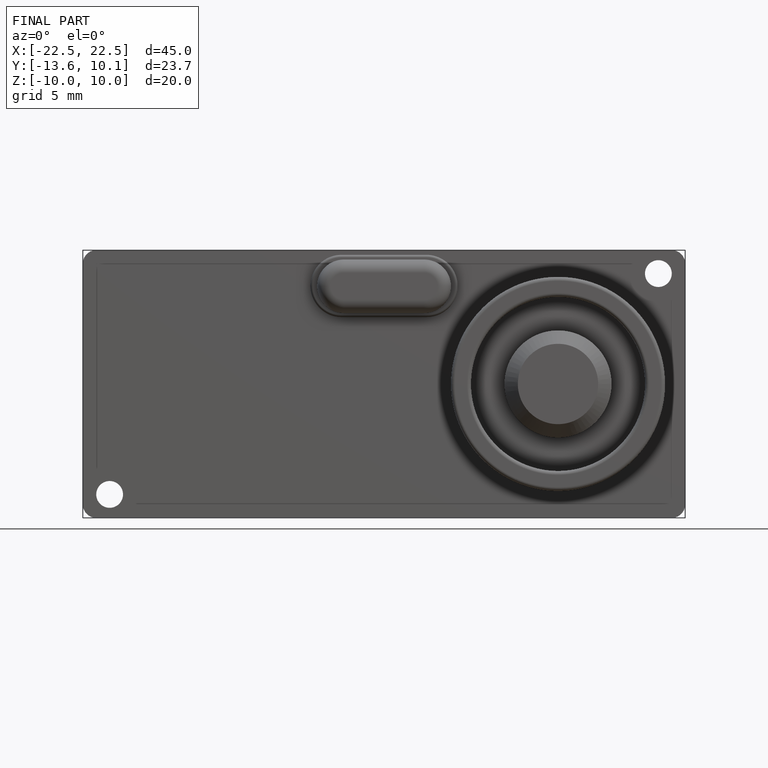
[diagram: finished part — front view with bounding-box wireframe]
